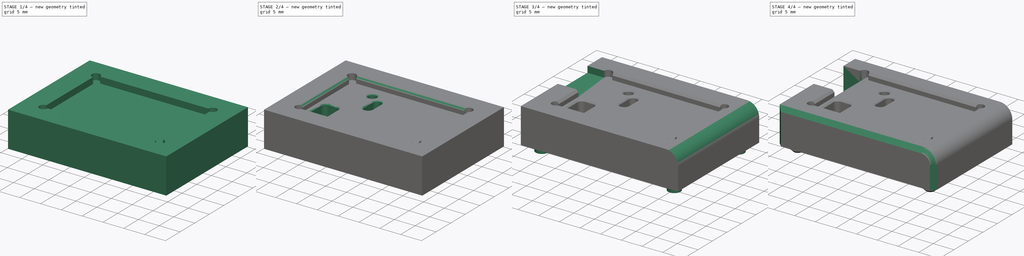
[diagram: build sequence overview — one tinted view per stage of 4, left to right]
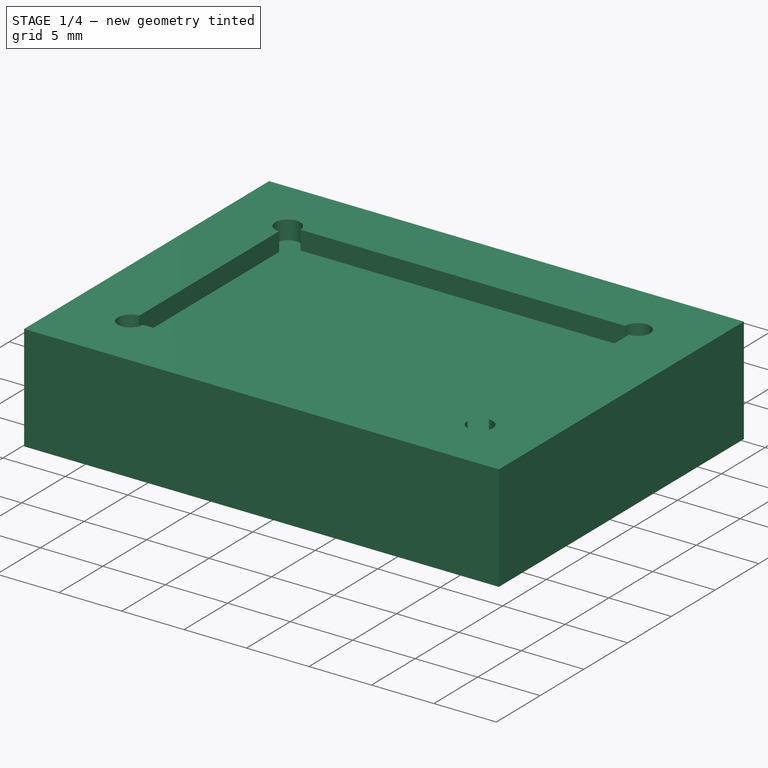
[diagram: stage 1 of 4 — iso view after this stage's code; geometry added in this stage tinted green]
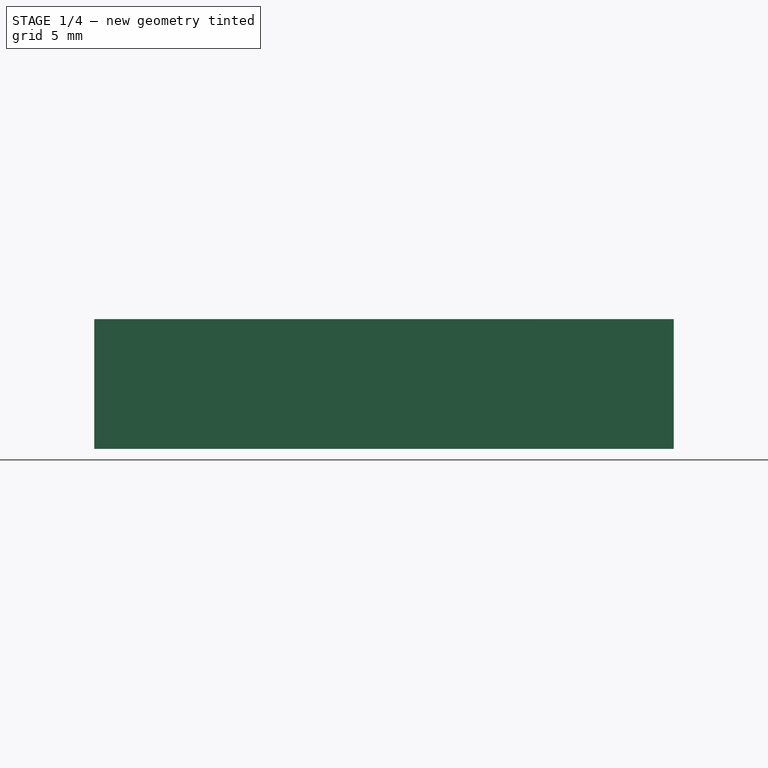
[diagram: stage 1 of 4 — front view after this stage's code; geometry added in this stage tinted green]
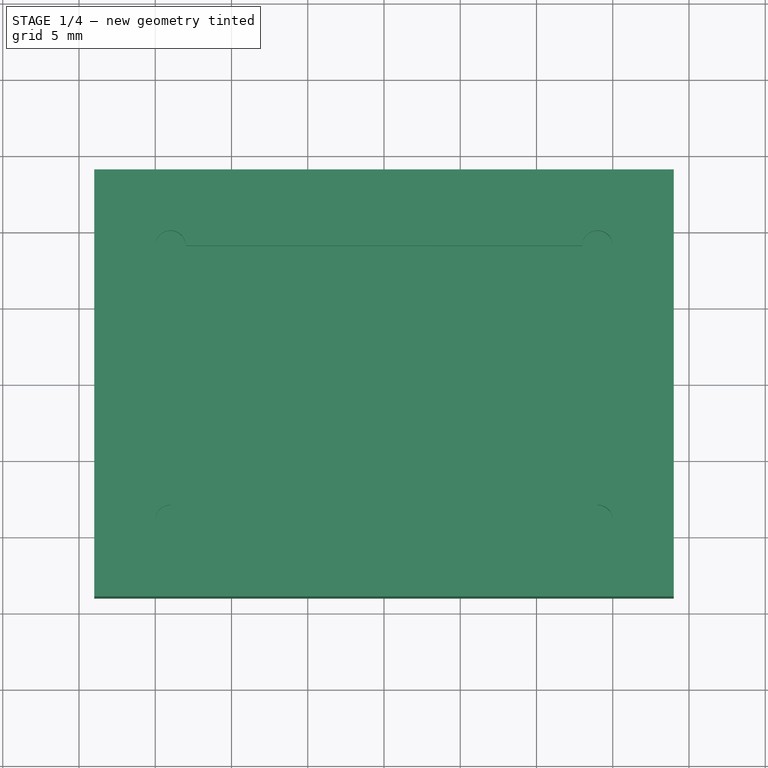
[diagram: stage 1 of 4 — top view after this stage's code; geometry added in this stage tinted green]
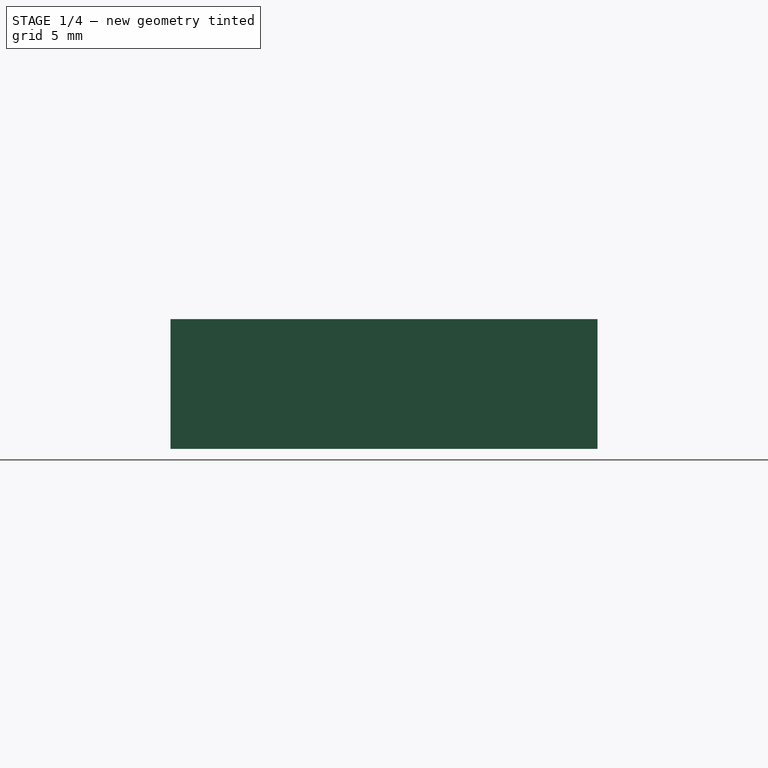
[diagram: stage 1 of 4 — right view after this stage's code; geometry added in this stage tinted green]
FCSTD DOCUMENT  (FreeCAD 0.17R13541 (Git))
Label: Test jig
License: All rights reserved
LicenseURL: http://en.wikipedia.org/wiki/All_rights_reserved
objects: Part::Feature×25, App::Part×25, Sketcher::SketchObject×7, PartDesign::Chamfer×5, PartDesign::Pocket×4, PartDesign::Pad×2, PartDesign::Fillet×1, PartDesign::Body×1
note: 51 computed .brp shape members not serialized (recipe doc carries the construction recipe); baked Part::Feature solids carry a one-line shape summary decoded from their .brp

FEATURE [Sketcher::SketchObject] Sketch
  MapMode = 5
  Support = -> [XY_Plane]
  sketch-geometry (7):
    g0: LineSegment StartX=-19 StartY=14 StartZ=0 EndX=19 EndY=14 EndZ=0
    g1: LineSegment StartX=19 StartY=14 StartZ=0 EndX=19 EndY=-14 EndZ=0
    g2: LineSegment StartX=19 StartY=-14 StartZ=0 EndX=-19 EndY=-14 EndZ=0
    g3: LineSegment StartX=-19 StartY=-14 StartZ=0 EndX=-19 EndY=14 EndZ=0
    g4: LineSegment [constr] StartX=-19 StartY=14 StartZ=0 EndX=19 EndY=-14 EndZ=0
    g5: LineSegment [constr] StartX=19 StartY=14 StartZ=0 EndX=-19 EndY=-14 EndZ=0
    g6: GeomPoint X=0 Y=0 Z=0
  constraints (17):
    c: Coincident(g0,g1)
    c: Coincident(g1,g2)
    c: Coincident(g2,g3)
    c: Coincident(g3,g0)
    c: Horizontal(g0)
    c: Horizontal(g2)
    c: Vertical(g1)
    c: Vertical(g3)
    c: Coincident(g4,g0)
    c: Coincident(g4,g1)
    c: Coincident(g5,g0)
    c: Coincident(g5,g2)
    c: PointOnObject(g6,g4)
    c: PointOnObject(g6,g5)
    c: Coincident(g6,g-1)
    c: DistanceX(g0,g0) = 38
    c: DistanceY(g1,g1) = 28
FEATURE [PartDesign::Pad] Pad
  Length = 8.5
  Length2 = 100
  Profile = -> Sketch
  Type = 0
FEATURE [Sketcher::SketchObject] Sketch001
  MapMode = 5
  Placement = pos=(0,0,8.5) rot=(0,0,1;0rad)
  Support = -> [Pad]
FEATURE [Sketcher::SketchObject] Sketch002
  MapMode = 5
  Placement = pos=(0,0,8.5) rot=(0,0,1;0rad)
  Support = -> [Pad]
  sketch-geometry (6):
    g0: LineSegment StartX=-14 StartY=9 StartZ=0 EndX=14 EndY=9 EndZ=0
    g1: LineSegment StartX=14 StartY=9 StartZ=0 EndX=14 EndY=-9 EndZ=0
    g2: LineSegment StartX=14 StartY=-9 StartZ=0 EndX=-14 EndY=-9 EndZ=0
    g3: LineSegment StartX=-14 StartY=-9 StartZ=0 EndX=-14 EndY=9 EndZ=0
    g4: LineSegment [constr] StartX=-14 StartY=9 StartZ=0 EndX=14 EndY=-9 EndZ=0
    g5: LineSegment [constr] StartX=14 StartY=9 StartZ=0 EndX=-14 EndY=-9 EndZ=0
  constraints (16):
    c: Coincident(g0,g1)
    c: Coincident(g1,g2)
    c: Coincident(g2,g3)
    c: Coincident(g3,g0)
    c: Horizontal(g0)
    c: Horizontal(g2)
    c: Vertical(g1)
    c: Vertical(g3)
    c: DistanceX(g0,g0) = 28
    c: DistanceY(g3,g3) = 18
    c: Coincident(g4,g0)
    c: Coincident(g4,g1)
    c: Coincident(g5,g0)
    c: Coincident(g5,g2)
    c: PointOnObject(g-1,g4)
    c: PointOnObject(g-1,g5)
FEATURE [PartDesign::Pocket] Pocket
  BaseFeature = -> Pad
  Length = 1.5
  Length2 = 100
  Profile = -> Sketch002
  Type = 0
FEATURE [Sketcher::SketchObject] Sketch003
  ExternalGeometry = -> [Pocket]
  MapMode = 5
  Placement = pos=(0,0,8.5) rot=(0,0,1;0rad)
  Support = -> [Pocket]
  sketch-geometry (4):
    g0: Circle CenterX=-14 CenterY=9 CenterZ=0 NormalX=0 NormalY=0 NormalZ=1 AngleXU=0 Radius=1
    g1: Circle CenterX=14 CenterY=9 CenterZ=0 NormalX=0 NormalY=0 NormalZ=1 AngleXU=0 Radius=1
    g2: Circle CenterX=14 CenterY=-9 CenterZ=0 NormalX=0 NormalY=0 NormalZ=1 AngleXU=0 Radius=1
    g3: Circle CenterX=-14 CenterY=-9 CenterZ=0 NormalX=0 NormalY=0 NormalZ=1 AngleXU=0 Radius=1
  constraints (8):
    c: Coincident(g0,g-3)
    c: Coincident(g1,g-3)
    c: Coincident(g2,g-4)
    c: Coincident(g3,g-4)
    c: Radius(g0) = 1
    c: Equal(g0,g1)
    c: Equal(g1,g2)
    c: Equal(g2,g3)
FEATURE [PartDesign::Pocket] Pocket001
  BaseFeature = -> Pocket
  Length = 1.5
  Length2 = 100
  Profile = -> Sketch003
  Type = 0
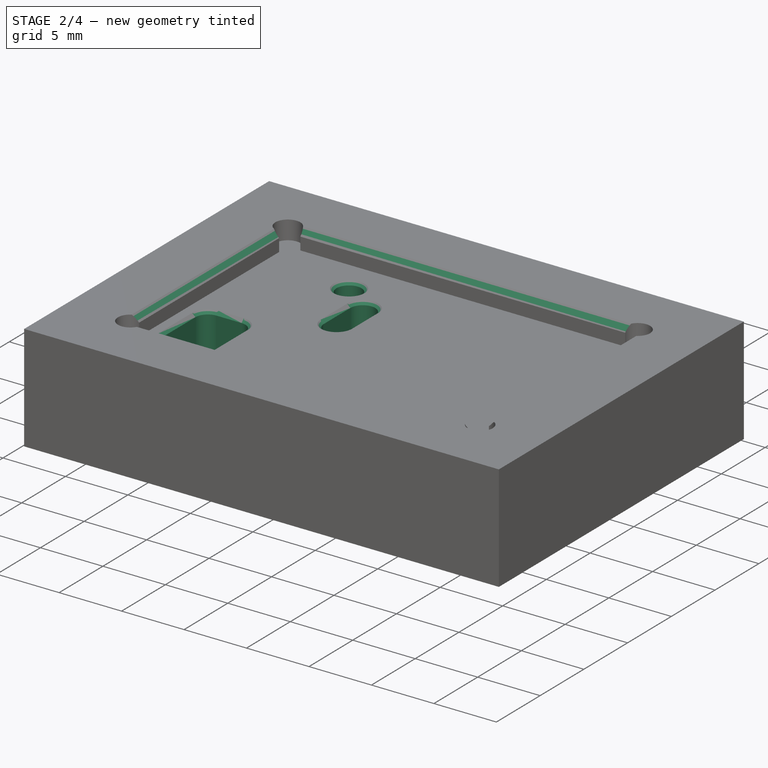
[diagram: stage 2 of 4 — iso view after this stage's code; geometry added in this stage tinted green]
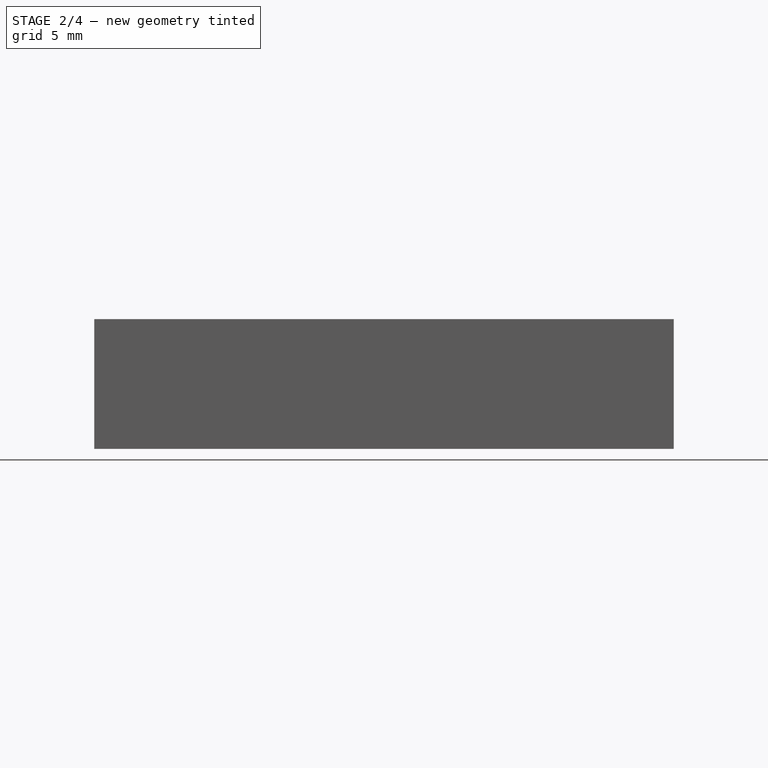
[diagram: stage 2 of 4 — front view after this stage's code; geometry added in this stage tinted green]
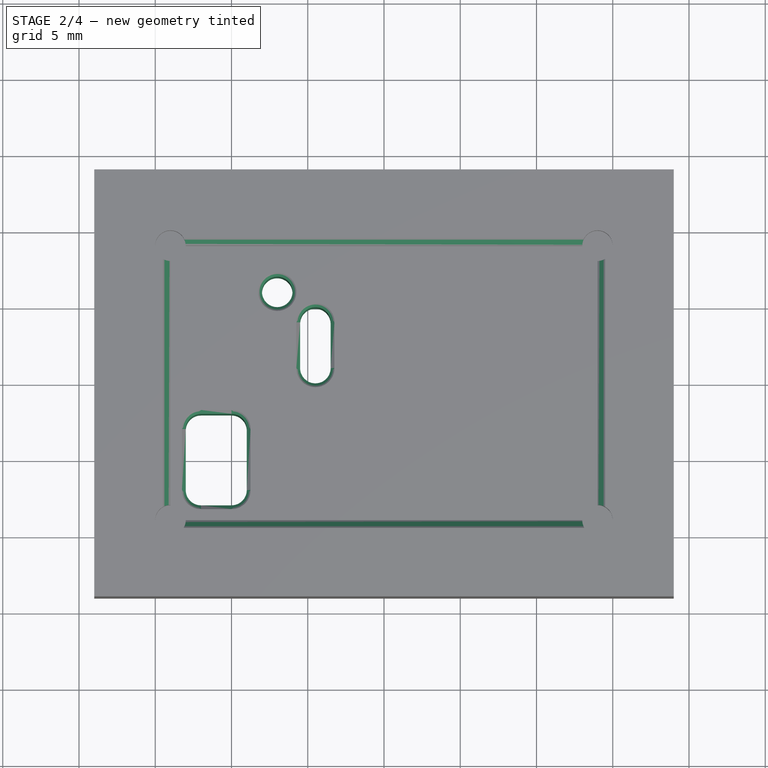
[diagram: stage 2 of 4 — top view after this stage's code; geometry added in this stage tinted green]
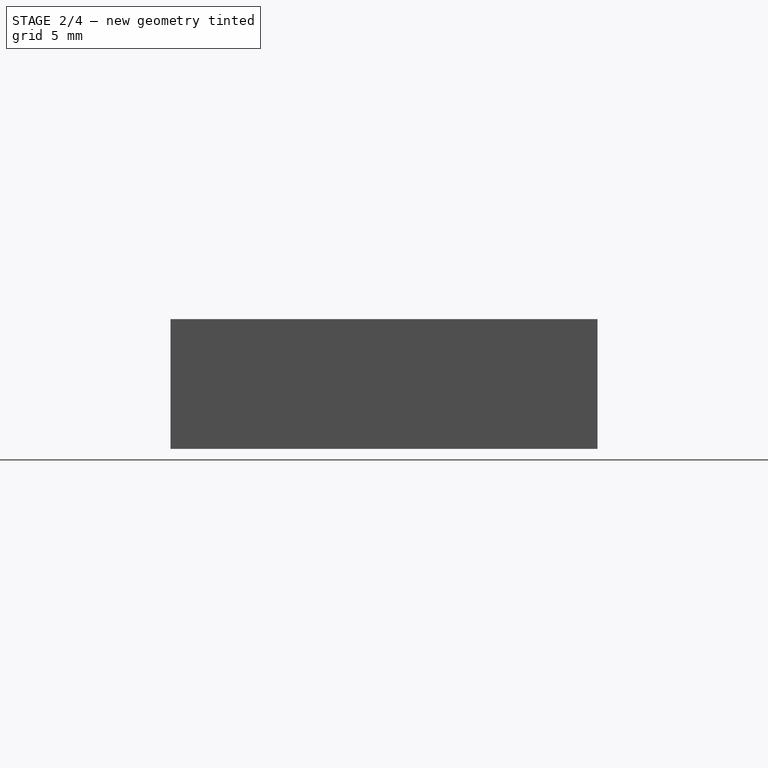
[diagram: stage 2 of 4 — right view after this stage's code; geometry added in this stage tinted green]
FEATURE [PartDesign::Chamfer] Chamfer
  Base = -> Pocket001 [Edge13,Edge16,Edge19,Edge21]
  BaseFeature = -> Pocket001
  Size = 0.5
FEATURE [Sketcher::SketchObject] Sketch004
  ExternalGeometry = -> [Chamfer]
  MapMode = 5
  Placement = pos=(0,0,7) rot=(0,0,1;0rad)
  Support = -> [Chamfer]
  sketch-geometry (13):
    g0: LineSegment StartX=-12 StartY=-8 StartZ=0 EndX=-10 EndY=-8 EndZ=0
    g1: LineSegment StartX=-9 StartY=-7 StartZ=0 EndX=-9 EndY=-3 EndZ=0
    g2: LineSegment StartX=-10 StartY=-2 StartZ=0 EndX=-12 EndY=-2 EndZ=0
    g3: LineSegment StartX=-13 StartY=-3 StartZ=0 EndX=-13 EndY=-7 EndZ=0
    g4: ArcOfCircle CenterX=-12 CenterY=-3 CenterZ=0 NormalX=0 NormalY=0 NormalZ=1 AngleXU=0 Radius=1 StartAngle=1.5708 EndAngle=3.14159
    g5: ArcOfCircle CenterX=-10 CenterY=-3 CenterZ=0 NormalX=0 NormalY=0 NormalZ=1 AngleXU=0 Radius=1 StartAngle=0 EndAngle=1.5708
    g6: ArcOfCircle CenterX=-10 CenterY=-7 CenterZ=0 NormalX=0 NormalY=0 NormalZ=1 AngleXU=0 Radius=1 StartAngle=4.71239 EndAngle=6.28319
    g7: ArcOfCircle CenterX=-12 CenterY=-7 CenterZ=0 NormalX=0 NormalY=0 NormalZ=1 AngleXU=0 Radius=1 StartAngle=3.14159 EndAngle=4.71239
    g8: ArcOfCircle CenterX=-4.5 CenterY=4 CenterZ=0 NormalX=0 NormalY=0 NormalZ=1 AngleXU=0 Radius=1 StartAngle=0 EndAngle=3.14159
    g9: ArcOfCircle CenterX=-4.5 CenterY=1 CenterZ=0 NormalX=0 NormalY=0 NormalZ=1 AngleXU=0 Radius=1 StartAngle=3.14159 EndAngle=6.28319
    g10: LineSegment StartX=-5.5 StartY=4 StartZ=0 EndX=-5.5 EndY=1 EndZ=0
    g11: LineSegment StartX=-3.5 StartY=4 StartZ=0 EndX=-3.5 EndY=1 EndZ=0
    g12: Circle CenterX=-7 CenterY=6 CenterZ=0 NormalX=0 NormalY=0 NormalZ=1 AngleXU=0 Radius=1
  constraints (33):
    c: Horizontal(g0)
    c: Horizontal(g2)
    c: Vertical(g1)
    c: Vertical(g3)
    c: Tangent(g3,g4) = -1.5708
    c: Tangent(g2,g4) = -1.5708
    c: Tangent(g2,g5) = -1.5708
    c: Tangent(g1,g5) = -1.5708
    c: Tangent(g1,g6) = -1.5708
    c: Tangent(g0,g6) = -1.5708
    c: Tangent(g0,g7) = -1.5708
    c: Tangent(g3,g7) = -1.5708
    c: Equal(g4,g5)
    c: Equal(g5,g6)
    c: Equal(g6,g7)
    c: DistanceY(g6,g5) = 4
    c: DistanceX(g4,g5) = 2
    c: Radius(g6) = 1
    c: DistanceX(g-3,g7) = 2
    c: DistanceY(g-3,g7) = 2
    c: Tangent(g8,g11) = 1.5708
    c: Tangent(g8,g10) = -1.5708
    c: Tangent(g10,g9) = -1.5708
    c: Tangent(g11,g9) = 1.5708
    c: Vertical(g10)
    c: Equal(g8,g9)
    c: Equal(g9,g5)
    c: DistanceY(g9,g8) = 3
    c: DistanceY(g-3,g9) = 10
    c: DistanceX(g-3,g9) = 9.5
    c: DistanceY(g-3,g12) = 15
    c: DistanceX(g-3,g12) = 7
    c: Equal(g12,g5)
FEATURE [PartDesign::Pocket] Pocket002
  BaseFeature = -> Chamfer
  Length = 5
  Length2 = 100
  Profile = -> Sketch004
  Refine = true
  Type = 1
FEATURE [PartDesign::Chamfer] Chamfer001
  Base = -> Pocket002 [Edge73,Edge54,Edge61,Edge87,Edge62,Edge49]
  BaseFeature = -> Pocket002
  Size = 0.25
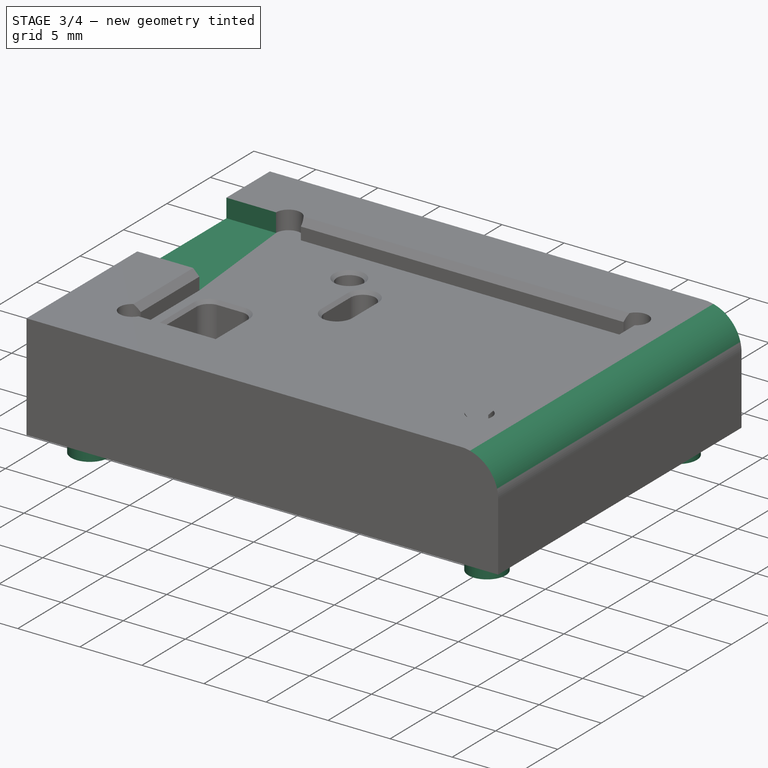
[diagram: stage 3 of 4 — iso view after this stage's code; geometry added in this stage tinted green]
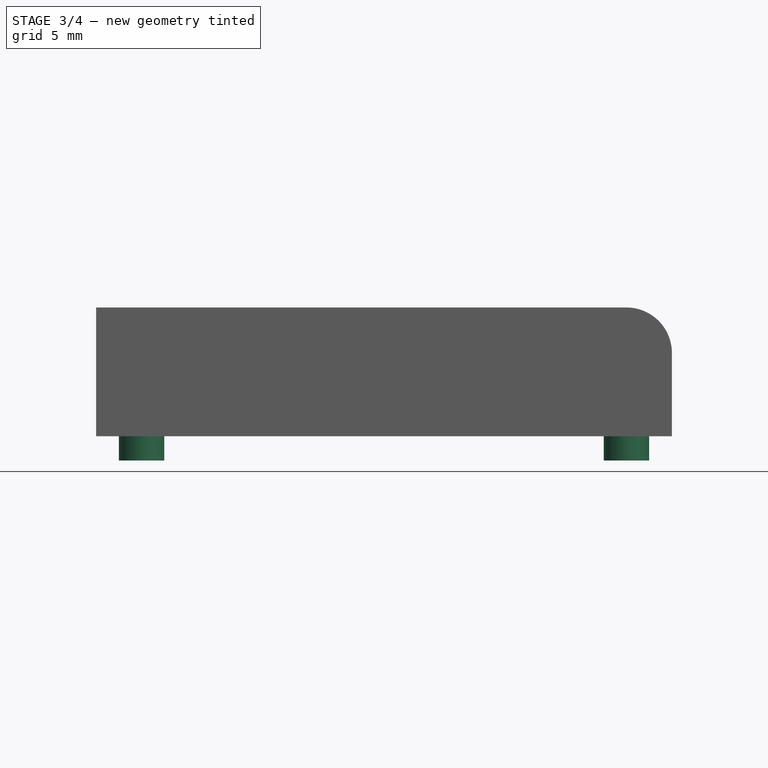
[diagram: stage 3 of 4 — front view after this stage's code; geometry added in this stage tinted green]
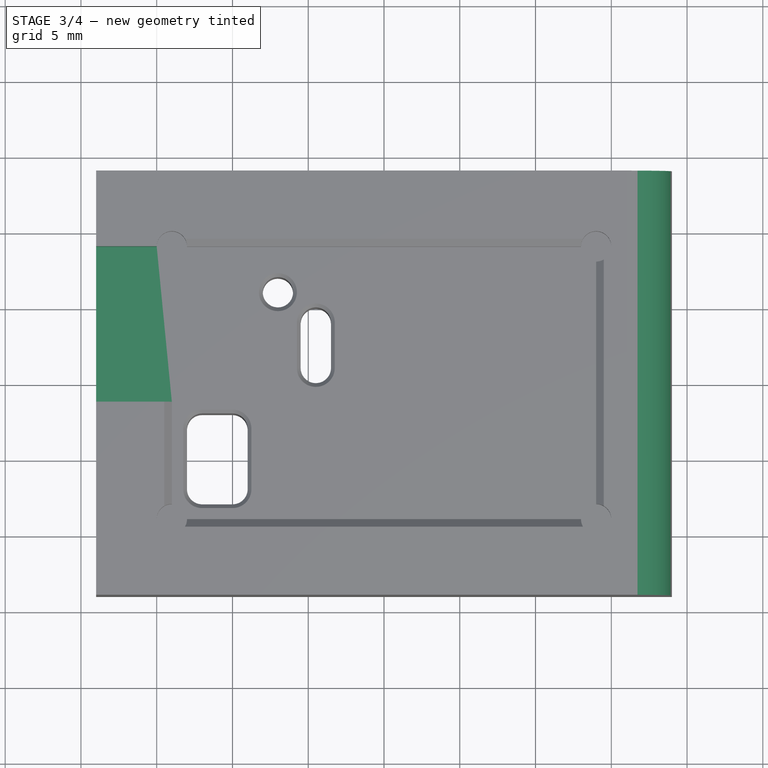
[diagram: stage 3 of 4 — top view after this stage's code; geometry added in this stage tinted green]
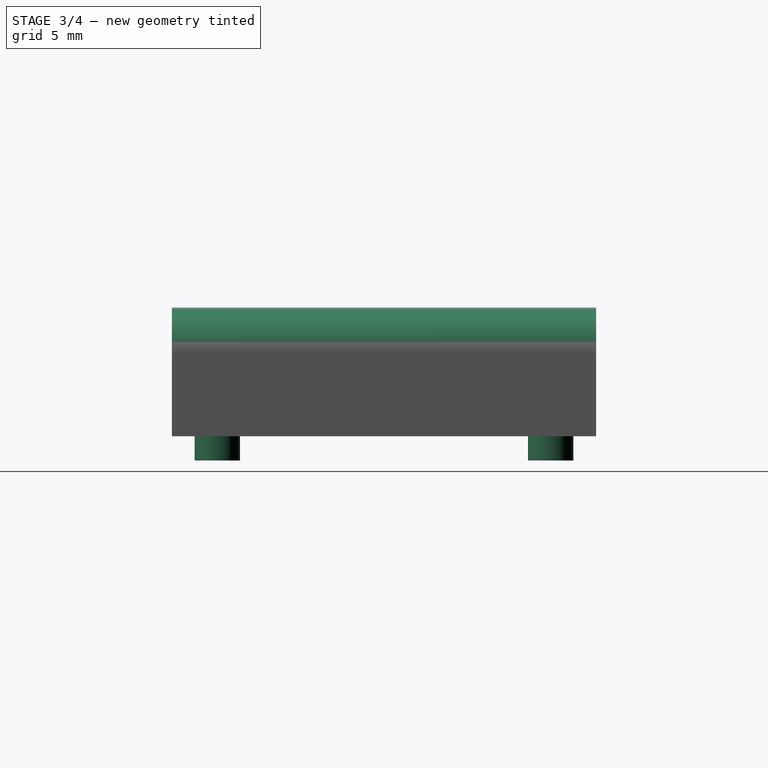
[diagram: stage 3 of 4 — right view after this stage's code; geometry added in this stage tinted green]
FEATURE [Part::Feature] Part__Feature  label="SOLID"
  shape: bbox 1.07 x 0.55 x 0.4 mm, 28 faces (baked)
FEATURE [App::Part] r_0402_h040
  Group = -> [Part__Feature]
  License = CC BY 3.0
  LicenseURL = http://creativecommons.org/licenses/by/3.0/
  Origin = -> Origin001
  Placement = pos=(7.75,-6.25,0.85) rot=(0,0,1;0rad)
FEATURE [Part::Feature] Part__Feature001  label="COMPOUND"
  shape: bbox 17.6 x 5.201 x 2.041 mm, 842 faces (baked)
FEATURE [App::Part] _2437_22p_CLOSED
  Group = -> [Part__Feature001]
  License = CC BY 3.0
  LicenseURL = http://creativecommons.org/licenses/by/3.0/
  Origin = -> Origin002
  Placement = pos=(22.5,-9,0.85) rot=(0,0,1;1.5708rad)
FEATURE [Part::Feature] Part__Feature002  label="COMPOUND001"
  shape: bbox 2.5 x 2 x 0.75 mm, 72 faces (baked)
FEATURE [App::Part] XTAL_SMD_2_5x2
  Group = -> [Part__Feature002]
  License = CC BY 3.0
  LicenseURL = http://creativecommons.org/licenses/by/3.0/
  Origin = -> Origin003
  Placement = pos=(18,-16,0.85) rot=(0,0,1;0rad)
FEATURE [Part::Feature] Part__Feature003  label="COMPOUND002"
  shape: bbox 7 x 7 x 1 mm, 281 faces (baked)
FEATURE [App::Part] QFN_44_7x7_0_5
  Group = -> [Part__Feature003]
  License = CC BY 3.0
  LicenseURL = http://creativecommons.org/licenses/by/3.0/
  Origin = -> Origin004
  Placement = pos=(14,-8,0.85) rot=(0,0,-1;1.5708rad)
FEATURE [Part::Feature] Part__Feature004  label="COMPOUND003"
  shape: bbox 4.5 x 4.5 x 0.4 mm, 140 faces (baked)
FEATURE [App::Part] SKRMAAE010
  Group = -> [Part__Feature004]
  License = CC BY 3.0
  LicenseURL = http://creativecommons.org/licenses/by/3.0/
  Origin = -> Origin005
  Placement = pos=(2.75,-15.5,0.85) rot=(0,0,1;1.5708rad)
FEATURE [Part::Feature] Part__Feature005  label="COMPOUND004"
  shape: bbox 1 x 0.5 x 0.5 mm, 19 faces (baked)
FEATURE [App::Part] LED_0402
  Group = -> [Part__Feature005]
  License = CC BY 3.0
  LicenseURL = http://creativecommons.org/licenses/by/3.0/
  Origin = -> Origin006
  Placement = pos=(12.75,-15.25,0.85) rot=(0,0,1;3.14159rad)
FEATURE [Part::Feature] Part__Feature006  label="SOLID001"
  shape: bbox 1.07 x 0.55 x 0.4 mm, 28 faces (baked)
FEATURE [App::Part] r_0402_h040001
  Group = -> [Part__Feature006]
  License = CC BY 3.0
  LicenseURL = http://creativecommons.org/licenses/by/3.0/
  Origin = -> Origin007
  Placement = pos=(12.75,-16.25,0.85) rot=(0,0,1;0rad)
FEATURE [Part::Feature] Part__Feature007  label="SOLID002"
  shape: bbox 1.07 x 0.55 x 0.4 mm, 28 faces (baked)
FEATURE [App::Part] r_0402_h040002
  Group = -> [Part__Feature007]
  License = CC BY 3.0
  LicenseURL = http://creativecommons.org/licenses/by/3.0/
  Origin = -> Origin008
  Placement = pos=(1.75,-12.25,0.85) rot=(0,0,1;3.14159rad)
FEATURE [Part::Feature] Part__Feature008  label="SOLID003"
  shape: bbox 1.07 x 0.55 x 0.4 mm, 28 faces (baked)
FEATURE [App::Part] r_0402_h040003
  Group = -> [Part__Feature008]
  License = CC BY 3.0
  LicenseURL = http://creativecommons.org/licenses/by/3.0/
  Origin = -> Origin009
  Placement = pos=(7.75,-7.25,0.85) rot=(0,0,1;3.14159rad)
FEATURE [Part::Feature] Part__Feature009  label="SOLID004"
  shape: bbox 1.07 x 0.55 x 0.4 mm, 28 faces (baked)
FEATURE [App::Part] r_0402_h040004
  Group = -> [Part__Feature009]
  License = CC BY 3.0
  LicenseURL = http://creativecommons.org/licenses/by/3.0/
  Origin = -> Origin010
  Placement = pos=(12.75,-14.25,0.85) rot=(0,0,1;3.14159rad)
FEATURE [Part::Feature] Part__Feature010  label="COMPOUND005"
  shape: bbox 1 x 0.5 x 0.5 mm, 44 faces (baked)
FEATURE [App::Part] C_0402_1005
  Group = -> [Part__Feature010]
  License = CC BY 3.0
  LicenseURL = http://creativecommons.org/licenses/by/3.0/
  Origin = -> Origin011
  Placement = pos=(19,-10.75,0.85) rot=(0,0,-1;1.5708rad)
FEATURE [Part::Feature] Part__Feature011  label="COMPOUND006"
  shape: bbox 1 x 0.5 x 0.5 mm, 44 faces (baked)
FEATURE [App::Part] C_0402_1005001
  Group = -> [Part__Feature011]
  License = CC BY 3.0
  LicenseURL = http://creativecommons.org/licenses/by/3.0/
  Origin = -> Origin012
  Placement = pos=(11.5,-2.5,0.85) rot=(0,0,1;1.5708rad)
FEATURE [Part::Feature] Part__Feature012  label="COMPOUND007"
  shape: bbox 1 x 0.5 x 0.5 mm, 44 faces (baked)
FEATURE [App::Part] C_0402_1005002
  Group = -> [Part__Feature012]
  License = CC BY 3.0
  LicenseURL = http://creativecommons.org/licenses/by/3.0/
  Origin = -> Origin013
  Placement = pos=(7.75,-4.25,0.85) rot=(0,0,1;3.14159rad)
FEATURE [Part::Feature] Part__Feature013  label="COMPOUND008"
  shape: bbox 1 x 0.5 x 0.5 mm, 44 faces (baked)
FEATURE [App::Part] C_0402_1005003
  Group = -> [Part__Feature013]
  License = CC BY 3.0
  LicenseURL = http://creativecommons.org/licenses/by/3.0/
  Origin = -> Origin014
  Placement = pos=(7.75,-5.25,0.85) rot=(0,0,1;3.14159rad)
FEATURE [Part::Feature] Part__Feature014  label="COMPOUND009"
  shape: bbox 1 x 0.5 x 0.5 mm, 44 faces (baked)
FEATURE [App::Part] C_0402_1005004
  Group = -> [Part__Feature014]
  License = CC BY 3.0
  LicenseURL = http://creativecommons.org/licenses/by/3.0/
  Origin = -> Origin015
  Placement = pos=(7.75,-9.25,0.85) rot=(0,0,1;3.14159rad)
FEATURE [Part::Feature] Part__Feature015  label="COMPOUND010"
  shape: bbox 1 x 0.5 x 0.5 mm, 44 faces (baked)
FEATURE [App::Part] C_0402_1005005
  Group = -> [Part__Feature015]
  License = CC BY 3.0
  LicenseURL = http://creativecommons.org/licenses/by/3.0/
  Origin = -> Origin016
  Placement = pos=(12.75,-13.25,0.85) rot=(0,0,1;0rad)
FEATURE [Part::Feature] Part__Feature016  label="COMPOUND011"
  shape: bbox 1 x 0.5 x 0.5 mm, 44 faces (baked)
FEATURE [App::Part] C_0402_1005006
  Group = -> [Part__Feature016]
  License = CC BY 3.0
  LicenseURL = http://creativecommons.org/licenses/by/3.0/
  Origin = -> Origin017
  Placement = pos=(19,-5,0.85) rot=(0,0,-1;1.5708rad)
FEATURE [Part::Feature] Part__Feature017  label="COMPOUND012"
  shape: bbox 1 x 0.5 x 0.5 mm, 44 faces (baked)
FEATURE [App::Part] C_0402_1005007
  Group = -> [Part__Feature017]
  License = CC BY 3.0
  LicenseURL = http://creativecommons.org/licenses/by/3.0/
  Origin = -> Origin018
  Placement = pos=(15.5,-16,0.85) rot=(0,0,1;1.5708rad)
FEATURE [Part::Feature] Part__Feature018  label="COMPOUND013"
  shape: bbox 1 x 0.5 x 0.5 mm, 44 faces (baked)
FEATURE [App::Part] C_0402_1005008
  Group = -> [Part__Feature018]
  License = CC BY 3.0
  LicenseURL = http://creativecommons.org/licenses/by/3.0/
  Origin = -> Origin019
  Placement = pos=(12.5,-2.5,0.85) rot=(0,0,1;1.5708rad)
FEATURE [Part::Feature] Part__Feature019  label="COMPOUND014"
  shape: bbox 1 x 0.5 x 0.5 mm, 44 faces (baked)
FEATURE [App::Part] C_0402_1005009
  Group = -> [Part__Feature019]
  License = CC BY 3.0
  LicenseURL = http://creativecommons.org/licenses/by/3.0/
  Origin = -> Origin020
  Placement = pos=(20.5,-16,0.85) rot=(0,0,-1;1.5708rad)
FEATURE [Part::Feature] Part__Feature020  label="COMPOUND015"
  shape: bbox 1 x 0.5 x 0.5 mm, 44 faces (baked)
FEATURE [App::Part] C_0402_1005010
  Group = -> [Part__Feature020]
  License = CC BY 3.0
  LicenseURL = http://creativecommons.org/licenses/by/3.0/
  Origin = -> Origin021
  Placement = pos=(7.75,-8.25,0.85) rot=(0,0,1;3.14159rad)
FEATURE [Part::Feature] Part__Feature021  label="COMPOUND016"
  shape: bbox 1 x 0.5 x 0.5 mm, 44 faces (baked)
FEATURE [App::Part] C_0402_1005011
  Group = -> [Part__Feature021]
  License = CC BY 3.0
  LicenseURL = http://creativecommons.org/licenses/by/3.0/
  Origin = -> Origin022
  Placement = pos=(1.75,-11.25,0.85) rot=(0,0,1;3.14159rad)
FEATURE [Part::Feature] Part__Feature022  label="COMPOUND017"
  shape: bbox 1.6 x 0.8 x 0.8 mm, 44 faces (baked)
FEATURE [App::Part] F_0603_1608
  Group = -> [Part__Feature022]
  License = CC BY 3.0
  LicenseURL = http://creativecommons.org/licenses/by/3.0/
  Origin = -> Origin023
  Placement = pos=(7.75,-2.5,0.85) rot=(0,0,1;0rad)
FEATURE [Part::Feature] Part__Feature023  label="COMPOUND018"
  shape: bbox 8.098 x 5.672 x 3.056 mm, 871 faces (baked)
FEATURE [App::Part] USB_MICRO_10104110_0001LF
  Group = -> [Part__Feature023]
  License = CC BY 3.0
  LicenseURL = http://creativecommons.org/licenses/by/3.0/
  Origin = -> Origin024
  Placement = pos=(0,-5,0.85) rot=(0,0,-1;1.5708rad)
FEATURE [Part::Feature] Part__Feature024  label="SOLID005"
  shape: bbox 28 x 18 x 0.8 mm, 6 faces (baked)
FEATURE [App::Part] Open_CASCADE_STEP_translator_6_8_1
  Group = -> [r_0402_h040,_2437_22p_CLOSED,XTAL_SMD_2_5x2,QFN_44_7x7_0_5,SKRMAAE010,LED_0402,r_0402_h040001,r_0402_h040002,r_0402_h040003,r_0402_h040004,C_0402_1005,C_0402_1005001,C_0402_1005002,C_0402_1005003,C_0402_1005004,C_0402_1005005,C_0402_1005006,C_0402_1005007,C_0402_1005008,C_0402_1005009,C_0402_1005010,C_0402_1005011,F_0603_1608,USB_MICRO_10104110_0001LF,Part__Feature024]
  License = CC BY 3.0
  LicenseURL = http://creativecommons.org/licenses/by/3.0/
  Origin = -> Origin025
  Placement = pos=(-14,9,7.8) rot=(0,0,1;0rad)
FEATURE [Sketcher::SketchObject] Sketch005
  ExternalGeometry = -> [Chamfer001]
  MapMode = 5
  Placement = pos=(0,0,8.5) rot=(0,0,1;0rad)
  Support = -> [Chamfer001]
  sketch-geometry (4):
    g0: LineSegment StartX=-19 StartY=-1.25 StartZ=0 EndX=0 EndY=-1.25 EndZ=0
    g1: LineSegment StartX=0 StartY=-1.25 StartZ=0 EndX=0 EndY=9 EndZ=0
    g2: LineSegment StartX=0 StartY=9 StartZ=0 EndX=-19 EndY=9 EndZ=0
    g3: LineSegment StartX=-19 StartY=9 StartZ=0 EndX=-19 EndY=-1.25 EndZ=0
  constraints (12):
    c: Coincident(g0,g1)
    c: Coincident(g1,g2)
    c: Coincident(g2,g3)
    c: Coincident(g3,g0)
    c: Horizontal(g0)
    c: Horizontal(g2)
    c: Vertical(g1)
    c: Vertical(g3)
    c: PointOnObject(g0,g-3)
    c: PointOnObject(g1,g-4)
    c: PointOnObject(g-1,g1)
    c: DistanceY(g3,g3) = 10.25
FEATURE [PartDesign::Pocket] Pocket003
  BaseFeature = -> Chamfer001
  Length = 1.5
  Length2 = 100
  Profile = -> Sketch005
  Refine = true
  Type = 0
FEATURE [PartDesign::Fillet] Fillet
  Base = -> Pocket003 [Edge44]
  BaseFeature = -> Pocket003
  Radius = 3
FEATURE [Sketcher::SketchObject] Sketch006
  ExternalGeometry = -> [Fillet]
  MapMode = 5
  Placement = pos=(0,0,0) rot=(1,0,0;3.14159rad)
  Support = -> [Fillet]
  sketch-geometry (7):
    g0: LineSegment [constr] StartX=-16 StartY=11 StartZ=0 EndX=16 EndY=11 EndZ=0
    g1: LineSegment [constr] StartX=16 StartY=11 StartZ=0 EndX=16 EndY=-11 EndZ=0
    g2: LineSegment [constr] StartX=16 StartY=-11 StartZ=0 EndX=-16 EndY=-11 EndZ=0
    g3: LineSegment [constr] StartX=-16 StartY=-11 StartZ=0 EndX=-16 EndY=11 EndZ=0
    g4: Circle CenterX=-16 CenterY=11 CenterZ=0 NormalX=0 NormalY=0 NormalZ=1 AngleXU=0 Radius=1.5
    g5: Circle CenterX=16 CenterY=11 CenterZ=0 NormalX=0 NormalY=0 NormalZ=1 AngleXU=0 Radius=1.5
    g6: Circle CenterX=16 CenterY=-11 CenterZ=0 NormalX=0 NormalY=0 NormalZ=1 AngleXU=0 Radius=1.5
  constraints (18):
    c: Coincident(g0,g1)
    c: Coincident(g1,g2)
    c: Coincident(g2,g3)
    c: Coincident(g3,g0)
    c: Horizontal(g0)
    c: Horizontal(g2)
    c: Vertical(g1)
    c: Vertical(g3)
    c: DistanceY(g0,g-4) = 3
    c: DistanceX(g-4,g0) = 3
    c: DistanceX(g0,g-5) = 3
    c: DistanceY(g-6,g1) = 3
    c: Coincident(g4,g0)
    c: Coincident(g5,g0)
    c: Coincident(g6,g1)
    c: Radius(g4) = 1.5
    c: Equal(g4,g5)
    c: Equal(g5,g6)
FEATURE [PartDesign::Pad] Pad001
  BaseFeature = -> Fillet
  Length = 1.6
  Length2 = 100
  Profile = -> Sketch006
  Refine = true
  Type = 0
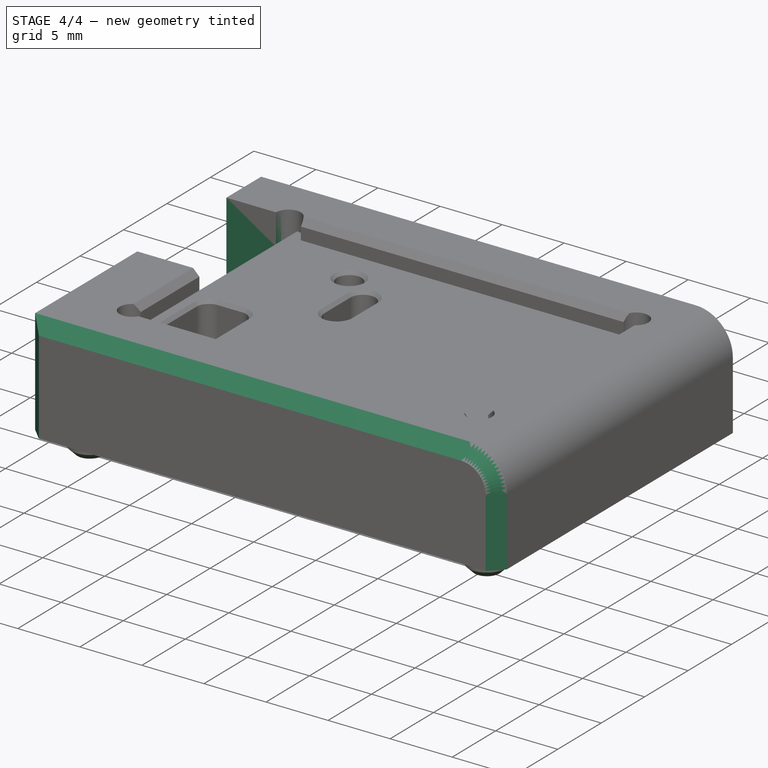
[diagram: stage 4 of 4 — iso view after this stage's code; geometry added in this stage tinted green]
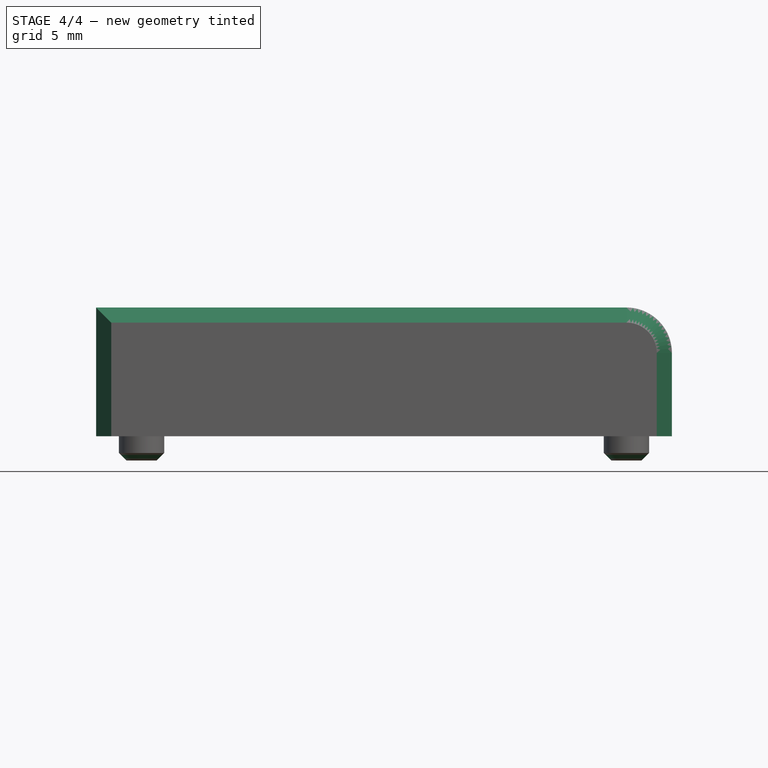
[diagram: stage 4 of 4 — front view after this stage's code; geometry added in this stage tinted green]
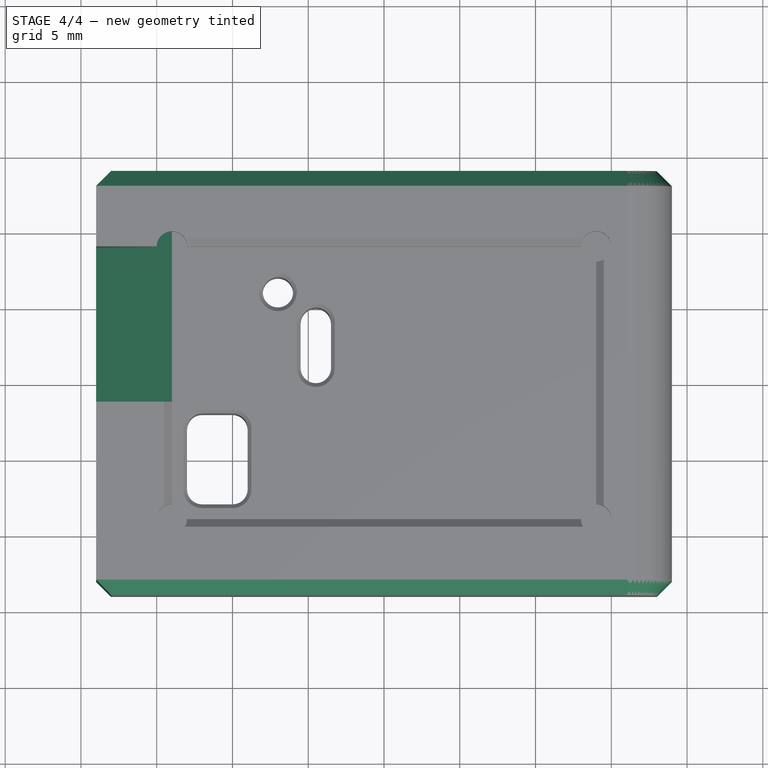
[diagram: stage 4 of 4 — top view after this stage's code; geometry added in this stage tinted green]
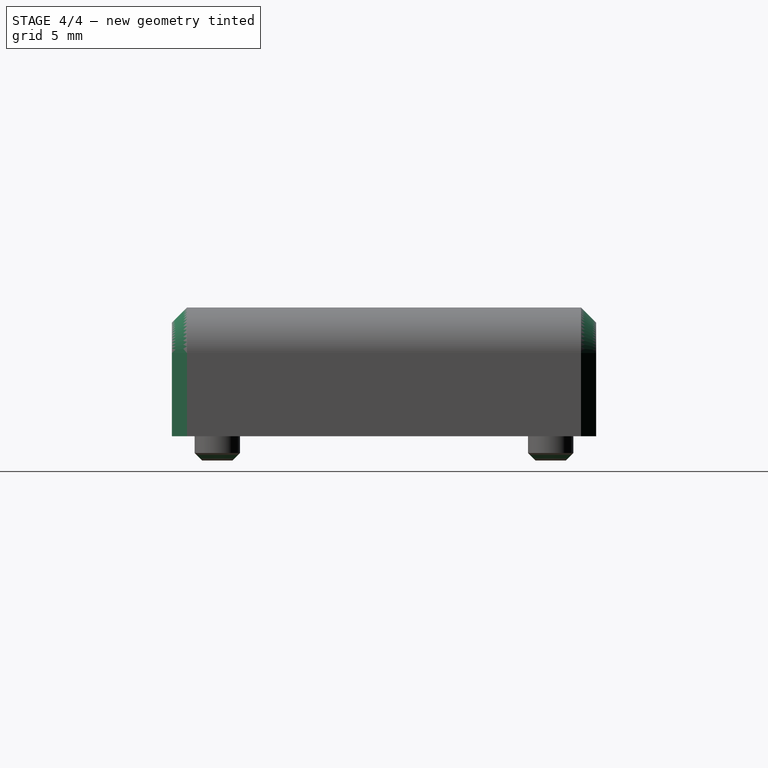
[diagram: stage 4 of 4 — right view after this stage's code; geometry added in this stage tinted green]
FEATURE [PartDesign::Chamfer] Chamfer002
  Base = -> Pad001 [Edge79,Edge77,Edge59]
  BaseFeature = -> Pad001
  Size = 0.5
FEATURE [PartDesign::Chamfer] Chamfer003
  Base = -> Chamfer002 [Edge36,Edge34,Edge25,Edge28]
  BaseFeature = -> Chamfer002
  Size = 1
FEATURE [PartDesign::Chamfer] Chamfer004
  Base = -> Chamfer003 [Edge38]
  BaseFeature = -> Chamfer003
  Size = 5
FEATURE [PartDesign::Body] Body
  Group = -> [Sketch,Pad,Sketch001,Sketch002,Pocket,Sketch003,Pocket001,Chamfer,Sketch004,Pocket002,Chamfer001,Sketch005,Pocket003,Fillet,Sketch006,Pad001,Chamfer002,Chamfer003,Chamfer004]
  Origin = -> Origin
  Tip = -> Chamfer004
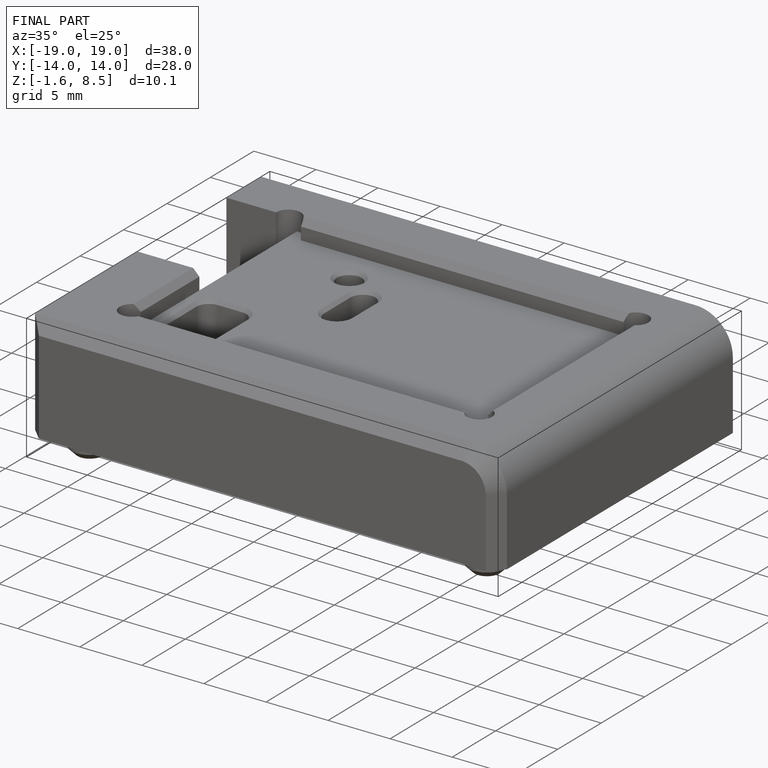
[diagram: finished part — iso view with bounding-box wireframe]
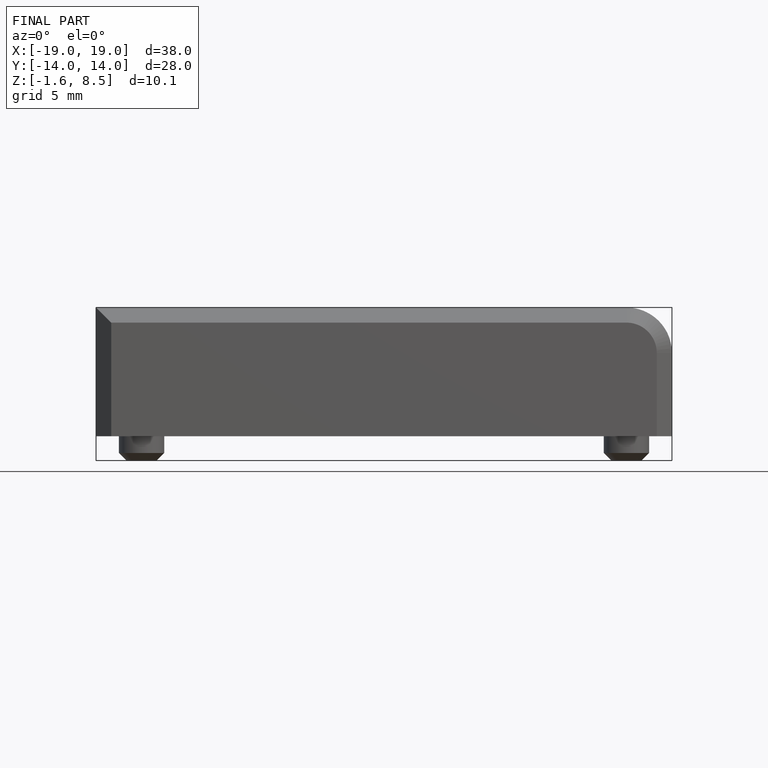
[diagram: finished part — front view with bounding-box wireframe]
